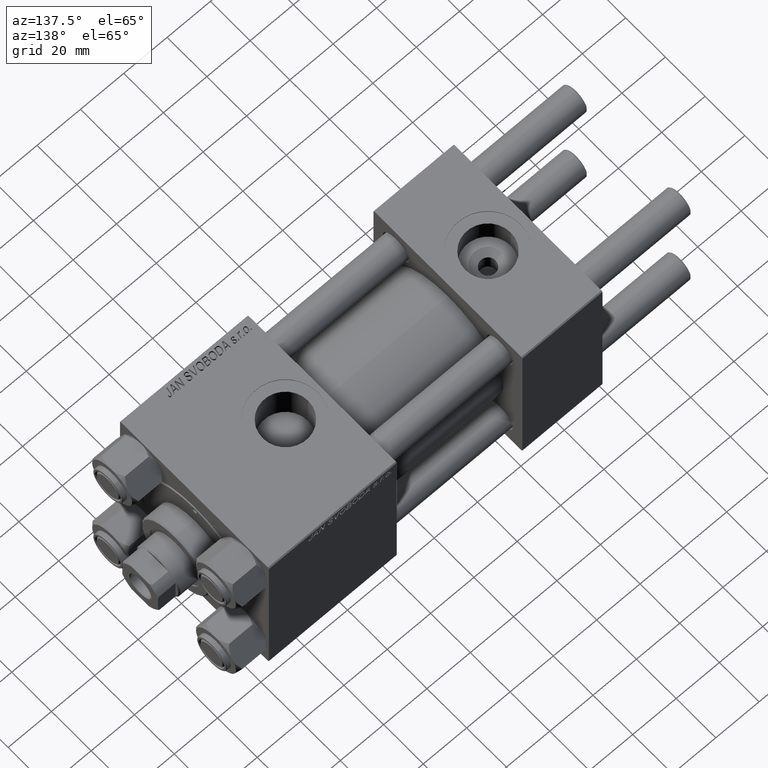
[diagram: clean part render]
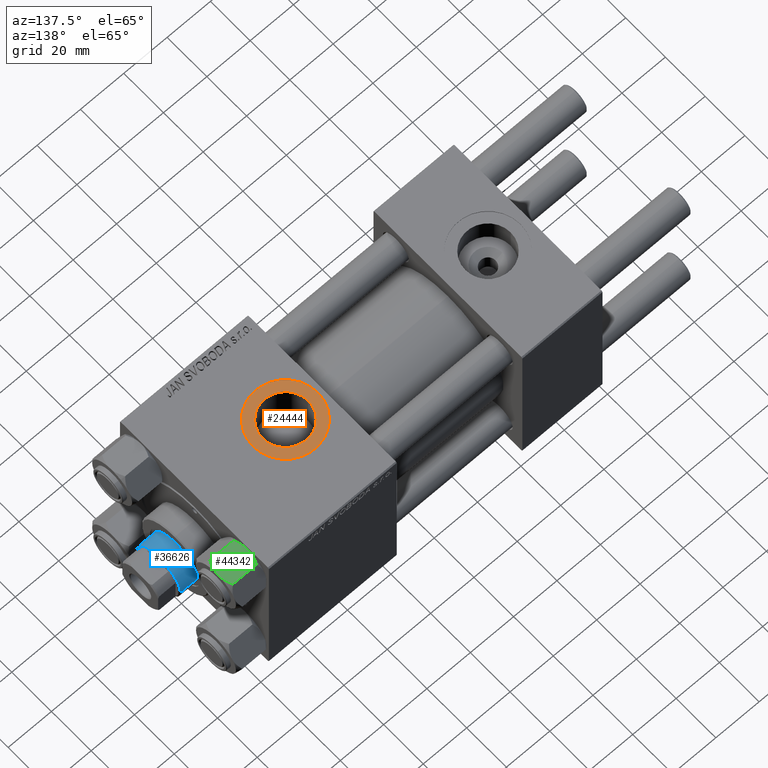
[diagram: same view with three faces highlighted in distinct colors, each labeled with its STEP entity id]
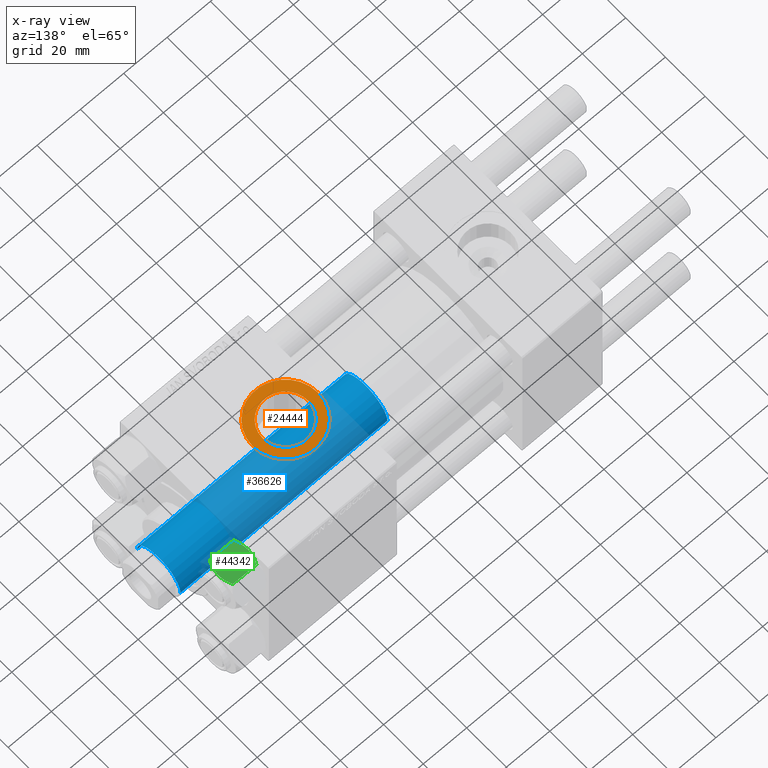
[diagram: x-ray of the same camera — body ghosted, the three highlighted faces saturated]
A machine part, auxiliary view with three faces highlighted in distinct colors.
The next image is the same camera in x-ray (body ghosted, the three faces saturated) — at least one of them is partly hidden behind the body in this view.
Their STEP definitions:

[orange] entity #24444 — the highlighted planar face has unit normal (0, 0, 1).
#455 = EDGE_CURVE ( 'NONE', #8927, #11307, #11856, .T. ) ;
#1784 = DIRECTION ( 'NONE',  ( 0.000000000000000000, 0.000000000000000000, 1.000000000000000000 ) ) ;
#1827 = DIRECTION ( 'NONE',  ( 1.000000000000000000, 0.000000000000000000, 0.000000000000000000 ) ) ;
#4219 = DIRECTION ( 'NONE',  ( 1.000000000000000000, 0.000000000000000000, 0.000000000000000000 ) ) ;
#4229 = CIRCLE ( 'NONE', #17122, 15.00000000000000000 ) ;
#5521 = VERTEX_POINT ( 'NONE', #9001 ) ;
#5763 = ORIENTED_EDGE ( 'NONE', *, *, #20790, .T. ) ;
#5956 = CARTESIAN_POINT ( 'NONE',  ( 112.0000000000000000, -6.938893903907226011E-15, 37.29999999999998295 ) ) ;
#6711 = DIRECTION ( 'NONE',  ( -0.000000000000000000, -0.000000000000000000, -1.000000000000000000 ) ) ;
#8863 = FACE_BOUND ( 'NONE', #25287, .T. ) ;
#8927 = VERTEX_POINT ( 'NONE', #19240 ) ;
#9001 = CARTESIAN_POINT ( 'NONE',  ( 122.4800000000000040, -5.655464058400800522E-15, 37.29999999999998295 ) ) ;
#11307 = VERTEX_POINT ( 'NONE', #49156 ) ;
#11856 = CIRCLE ( 'NONE', #31184, 15.00000000000000000 ) ;
#13445 = DIRECTION ( 'NONE',  ( 0.000000000000000000, 0.000000000000000000, 1.000000000000000000 ) ) ;
#15050 = CARTESIAN_POINT ( 'NONE',  ( 112.0000000000000000, -6.938893903907226011E-15, 37.29999999999998295 ) ) ;
#15299 = ORIENTED_EDGE ( 'NONE', *, *, #42028, .T. ) ;
#16199 = PLANE ( 'NONE',  #26766 ) ;
#17122 = AXIS2_PLACEMENT_3D ( 'NONE', #21749, #13445, #1827 ) ;
#17188 = DIRECTION ( 'NONE',  ( 1.000000000000000000, 0.000000000000000000, -0.000000000000000000 ) ) ;
#19240 = CARTESIAN_POINT ( 'NONE',  ( 96.99999999999998579, -5.101923705186194844E-15, 37.29999999999998295 ) ) ;
#20790 = EDGE_CURVE ( 'NONE', #11307, #8927, #4229, .T. ) ;
#20955 = FACE_OUTER_BOUND ( 'NONE', #29947, .T. ) ;
#21749 = CARTESIAN_POINT ( 'NONE',  ( 112.0000000000000000, -6.938893903907226011E-15, 37.29999999999998295 ) ) ;
#21849 = ORIENTED_EDGE ( 'NONE', *, *, #28971, .T. ) ;
#22076 = CIRCLE ( 'NONE', #32547, 10.48000000000000398 ) ;
#22565 = CARTESIAN_POINT ( 'NONE',  ( 101.5199999999999960, -6.938893903907226011E-15, 37.29999999999998295 ) ) ;
#24444 = ADVANCED_FACE ( 'NONE', ( #8863, #20955 ), #16199, .T. ) ;
#25287 = EDGE_LOOP ( 'NONE', ( #15299, #21849 ) ) ;
#26766 = AXIS2_PLACEMENT_3D ( 'NONE', #36337, #1784, #17188 ) ;
#28911 = DIRECTION ( 'NONE',  ( 0.000000000000000000, 0.000000000000000000, 1.000000000000000000 ) ) ;
#28971 = EDGE_CURVE ( 'NONE', #5521, #35447, #22076, .T. ) ;
#29947 = EDGE_LOOP ( 'NONE', ( #5763, #49791 ) ) ;
#30667 = DIRECTION ( 'NONE',  ( 1.000000000000000000, 0.000000000000000000, 0.000000000000000000 ) ) ;
#31184 = AXIS2_PLACEMENT_3D ( 'NONE', #5956, #28911, #35742 ) ;
#32547 = AXIS2_PLACEMENT_3D ( 'NONE', #35727, #46615, #4219 ) ;
#35447 = VERTEX_POINT ( 'NONE', #22565 ) ;
#35727 = CARTESIAN_POINT ( 'NONE',  ( 112.0000000000000000, -6.938893903907226011E-15, 37.29999999999998295 ) ) ;
#35742 = DIRECTION ( 'NONE',  ( 1.000000000000000000, 0.000000000000000000, 0.000000000000000000 ) ) ;
#36337 = CARTESIAN_POINT ( 'NONE',  ( 112.0000000000000000, -6.938893903907226011E-15, 37.29999999999998295 ) ) ;
#42028 = EDGE_CURVE ( 'NONE', #35447, #5521, #48417, .T. ) ;
#46615 = DIRECTION ( 'NONE',  ( -0.000000000000000000, -0.000000000000000000, -1.000000000000000000 ) ) ;
#48417 = CIRCLE ( 'NONE', #49215, 10.48000000000000398 ) ;
#49156 = CARTESIAN_POINT ( 'NONE',  ( 127.0000000000000000, -6.938893903907226011E-15, 37.29999999999998295 ) ) ;
#49215 = AXIS2_PLACEMENT_3D ( 'NONE', #15050, #6711, #30667 ) ;
#49791 = ORIENTED_EDGE ( 'NONE', *, *, #455, .T. ) ;

[blue] entity #36626 — the highlighted cylindrical surface (edge-blend (fillet) strip) has radius 11 mm, axis along (-1, 0, 0).
#983 = CIRCLE ( 'NONE', #28373, 11.00000000000000000 ) ;
#2627 = EDGE_CURVE ( 'NONE', #18907, #18970, #23388, .T. ) ;
#3096 = FACE_OUTER_BOUND ( 'NONE', #26594, .T. ) ;
#3593 = DIRECTION ( 'NONE',  ( -1.000000000000000000, 0.000000000000000000, 0.000000000000000000 ) ) ;
#4217 = CARTESIAN_POINT ( 'NONE',  ( 11.00000000000000000, 1.347111479062088405E-15, 134.0000000000000000 ) ) ;
#4550 = CARTESIAN_POINT ( 'NONE',  ( 11.00000000000000000, 1.347111479062088405E-15, 38.00000000000000000 ) ) ;
#5716 = VERTEX_POINT ( 'NONE', #17015 ) ;
#6242 = EDGE_CURVE ( 'NONE', #5716, #46938, #18698, .T. ) ;
#7595 = CARTESIAN_POINT ( 'NONE',  ( 11.00000000000000000, 1.347111479062088405E-15, 133.5000000000000000 ) ) ;
#9552 = DIRECTION ( 'NONE',  ( 0.000000000000000000, 0.000000000000000000, -1.000000000000000000 ) ) ;
#11205 = ORIENTED_EDGE ( 'NONE', *, *, #36981, .T. ) ;
#12539 = AXIS2_PLACEMENT_3D ( 'NONE', #44749, #37899, #3593 ) ;
#13280 = ORIENTED_EDGE ( 'NONE', *, *, #6242, .T. ) ;
#13997 = ORIENTED_EDGE ( 'NONE', *, *, #2627, .F. ) ;
#17015 = CARTESIAN_POINT ( 'NONE',  ( -11.00000000000000000, 0.000000000000000000, 133.5000000000000000 ) ) ;
#18206 = DIRECTION ( 'NONE',  ( -0.000000000000000000, -0.000000000000000000, -1.000000000000000000 ) ) ;
#18698 = LINE ( 'NONE', #44955, #28152 ) ;
#18907 = VERTEX_POINT ( 'NONE', #7595 ) ;
#18970 = VERTEX_POINT ( 'NONE', #4550 ) ;
#23388 = LINE ( 'NONE', #4217, #32039 ) ;
#23457 = CARTESIAN_POINT ( 'NONE',  ( 0.000000000000000000, 0.000000000000000000, 133.5000000000000000 ) ) ;
#23873 = CIRCLE ( 'NONE', #44014, 11.00000000000000000 ) ;
#26594 = EDGE_LOOP ( 'NONE', ( #13997, #11205, #13280, #42800 ) ) ;
#27181 = DIRECTION ( 'NONE',  ( -0.000000000000000000, -0.000000000000000000, -1.000000000000000000 ) ) ;
#28152 = VECTOR ( 'NONE', #18206, 1000.000000000000000 ) ;
#28220 = DIRECTION ( 'NONE',  ( 1.000000000000000000, 0.000000000000000000, 0.000000000000000000 ) ) ;
#28373 = AXIS2_PLACEMENT_3D ( 'NONE', #29756, #33296, #48700 ) ;
#29756 = CARTESIAN_POINT ( 'NONE',  ( 0.000000000000000000, 0.000000000000000000, 38.00000000000000000 ) ) ;
#32039 = VECTOR ( 'NONE', #27181, 1000.000000000000000 ) ;
#33296 = DIRECTION ( 'NONE',  ( 0.000000000000000000, 0.000000000000000000, 1.000000000000000000 ) ) ;
#36626 = ADVANCED_FACE ( 'NONE', ( #3096 ), #41438, .T. ) ;
#36981 = EDGE_CURVE ( 'NONE', #18907, #5716, #23873, .T. ) ;
#37899 = DIRECTION ( 'NONE',  ( -0.000000000000000000, -0.000000000000000000, -1.000000000000000000 ) ) ;
#40728 = CARTESIAN_POINT ( 'NONE',  ( -11.00000000000000000, 0.000000000000000000, 38.00000000000000000 ) ) ;
#41438 = CYLINDRICAL_SURFACE ( 'NONE', #12539, 11.00000000000000000 ) ;
#42800 = ORIENTED_EDGE ( 'NONE', *, *, #44790, .T. ) ;
#44014 = AXIS2_PLACEMENT_3D ( 'NONE', #23457, #9552, #28220 ) ;
#44749 = CARTESIAN_POINT ( 'NONE',  ( 0.000000000000000000, 0.000000000000000000, 134.0000000000000000 ) ) ;
#44790 = EDGE_CURVE ( 'NONE', #46938, #18970, #983, .T. ) ;
#44955 = CARTESIAN_POINT ( 'NONE',  ( -11.00000000000000000, 0.000000000000000000, 134.0000000000000000 ) ) ;
#46938 = VERTEX_POINT ( 'NONE', #40728 ) ;
#48700 = DIRECTION ( 'NONE',  ( 1.000000000000000000, 0.000000000000000000, 0.000000000000000000 ) ) ;

[green] entity #44342 — the highlighted planar face has unit normal (0, -0.097, -0.9953).
#803 = CARTESIAN_POINT ( 'NONE',  ( -11.61999999999999922, 4.243578825136429979E-17, -12.44321519197517922 ) ) ;
#1172 = CARTESIAN_POINT ( 'NONE',  ( -8.209704053696571080, 5.906805847843720869, -13.99999999999999112 ) ) ;
#2352 = VERTEX_POINT ( 'NONE', #46150 ) ;
#3577 = CARTESIAN_POINT ( 'NONE',  ( -6.265545725125286403, 9.274186850887382150, -1.101239082899542421 ) ) ;
#4056 = CARTESIAN_POINT ( 'NONE',  ( -11.61999999999999922, 6.036006524886462134E-17, -14.00000000000000000 ) ) ;
#4150 = ORIENTED_EDGE ( 'NONE', *, *, #30431, .T. ) ;
#5227 = LINE ( 'NONE', #32218, #15173 ) ;
#5291 = CARTESIAN_POINT ( 'NONE',  ( -10.69662495661650325, 1.599332489581332339, -0.7114554706434570441 ) ) ;
#6608 = CARTESIAN_POINT ( 'NONE',  ( -7.700834831386347723, 6.788193195293092508, -0.1903979688073504373 ) ) ;
#7099 = ORIENTED_EDGE ( 'NONE', *, *, #32610, .F. ) ;
#7534 = EDGE_CURVE ( 'NONE', #8716, #25544, #5227, .T. ) ;
#7736 = DIRECTION ( 'NONE',  ( 0.8660254037844388186, -0.4999999999999996669, 0.000000000000000000 ) ) ;
#8402 = EDGE_CURVE ( 'NONE', #36227, #8716, #10017, .T. ) ;
#8694 = EDGE_LOOP ( 'NONE', ( #10311, #4150, #7099, #9891, #19478, #29809 ) ) ;
#8716 = VERTEX_POINT ( 'NONE', #33116 ) ;
#8987 = CARTESIAN_POINT ( 'NONE',  ( -8.714999999999996305, 5.031607595987583004, -14.00000000000000000 ) ) ;
#9087 = CARTESIAN_POINT ( 'NONE',  ( -8.714999999999996305, 5.031607595987583004, 0.000000000000000000 ) ) ;
#9891 = ORIENTED_EDGE ( 'NONE', *, *, #20951, .F. ) ;
#10017 = B_SPLINE_CURVE_WITH_KNOTS ( 'NONE', 3,
 ( #8987, #1172, #21081, #13028, #31944, #13521 ),
 .UNSPECIFIED., .F., .F.,
 ( 4, 2, 4 ),
 ( 0.006022845781655582036, 0.009013049135303628084, 0.01200325248895167327 ),
 .UNSPECIFIED. ) ;
#10311 = ORIENTED_EDGE ( 'NONE', *, *, #48616, .F. ) ;
#11273 = VERTEX_POINT ( 'NONE', #803 ) ;
#13028 = CARTESIAN_POINT ( 'NONE',  ( -6.733375043383501790, 8.463882702393842550, -13.28854452935654251 ) ) ;
#13378 = CARTESIAN_POINT ( 'NONE',  ( -11.16498164529022219, 0.7881149087337291359, -1.101766453314959815 ) ) ;
#13521 = CARTESIAN_POINT ( 'NONE',  ( -5.810000000000004050, 10.06321519197517667, -12.44321519197517745 ) ) ;
#14583 = CARTESIAN_POINT ( 'NONE',  ( -8.969430103550386946, 4.590921729663310913, -13.99999999999999289 ) ) ;
#15173 = VECTOR ( 'NONE', #44094, 1000.000000000000000 ) ;
#17440 = CARTESIAN_POINT ( 'NONE',  ( -5.810000000000003162, 10.06321519197517667, -1.556784808024824107 ) ) ;
#18231 = CARTESIAN_POINT ( 'NONE',  ( -8.202333004087902779, 5.919572880271050330, -0.03994118060691660005 ) ) ;
#19478 = ORIENTED_EDGE ( 'NONE', *, *, #7534, .F. ) ;
#19590 = DIRECTION ( 'NONE',  ( 0.4999999999999996669, 0.8660254037844388186, 0.000000000000000000 ) ) ;
#20687 = CARTESIAN_POINT ( 'NONE',  ( -11.61999999999999922, -1.565987599140169687E-18, -1.556784808024820776 ) ) ;
#20951 = EDGE_CURVE ( 'NONE', #25544, #2352, #47133, .T. ) ;
#21081 = CARTESIAN_POINT ( 'NONE',  ( -7.713000053756310592, 6.767122412062951398, -13.84547602999601068 ) ) ;
#23117 = PLANE ( 'NONE',  #28329 ) ;
#24471 = CARTESIAN_POINT ( 'NONE',  ( -9.716999946243696229, 3.296092779912225712, -0.1545239700039918174 ) ) ;
#24680 = CARTESIAN_POINT ( 'NONE',  ( -8.714999999999996305, 5.031607595987583004, -14.00000000000000000 ) ) ;
#25544 = VERTEX_POINT ( 'NONE', #17440 ) ;
#25784 = CARTESIAN_POINT ( 'NONE',  ( -6.731401448974991375, 8.467301068182912616, -0.7141438259524754972 ) ) ;
#26415 = CARTESIAN_POINT ( 'NONE',  ( -8.714999999999996305, 5.031607595987583004, -14.00000000000000000 ) ) ;
#26921 = CARTESIAN_POINT ( 'NONE',  ( -11.16445427487471775, 0.7890283410877965142, -12.89876091710046069 ) ) ;
#28329 = AXIS2_PLACEMENT_3D ( 'NONE', #42047, #7736, #19590 ) ;
#29809 = ORIENTED_EDGE ( 'NONE', *, *, #8402, .F. ) ;
#30208 = VECTOR ( 'NONE', #37620, 1000.000000000000000 ) ;
#30431 = EDGE_CURVE ( 'NONE', #11273, #40038, #38616, .T. ) ;
#30815 = CARTESIAN_POINT ( 'NONE',  ( -8.714999999999996305, 5.031607595987583004, 0.000000000000000000 ) ) ;
#31944 = CARTESIAN_POINT ( 'NONE',  ( -6.265018354709781079, 9.275100283241448196, -12.89823354668503974 ) ) ;
#32218 = CARTESIAN_POINT ( 'NONE',  ( -5.810000000000003162, 10.06321519197517667, -14.00000000000000000 ) ) ;
#32610 = EDGE_CURVE ( 'NONE', #2352, #40038, #33084, .T. ) ;
#33084 = B_SPLINE_CURVE_WITH_KNOTS ( 'NONE', 3,
 ( #9087, #47941, #24471, #5291, #13378, #20687 ),
 .UNSPECIFIED., .F., .F.,
 ( 4, 2, 4 ),
 ( 0.006022845781655588975, 0.009013049135303633289, 0.01200325248895167847 ),
 .UNSPECIFIED. ) ;
#33116 = CARTESIAN_POINT ( 'NONE',  ( -5.810000000000004050, 10.06321519197517667, -12.44321519197517745 ) ) ;
#33738 = CARTESIAN_POINT ( 'NONE',  ( -10.69859855102501278, 1.595914123792263162, -13.28585617404753094 ) ) ;
#35590 = CARTESIAN_POINT ( 'NONE',  ( -8.460569896449618099, 5.472293462311861312, -4.841640326505579160E-15 ) ) ;
#36227 = VERTEX_POINT ( 'NONE', #24680 ) ;
#37620 = DIRECTION ( 'NONE',  ( -0.000000000000000000, -0.000000000000000000, 1.000000000000000000 ) ) ;
#38004 = B_SPLINE_CURVE_WITH_KNOTS ( 'NONE', 3,
 ( #49889, #26921, #33738, #42310, #49138, #49387, #14583, #26415 ),
 .UNSPECIFIED., .F., .F.,
 ( 4, 2, 2, 4 ),
 ( 2.544312114905219494E-07, 0.003011550106433534719, 0.004517197944044558378, 0.006022845781655582036 ),
 .UNSPECIFIED. ) ;
#38616 = LINE ( 'NONE', #4056, #30208 ) ;
#39912 = CARTESIAN_POINT ( 'NONE',  ( -11.61999999999999922, -1.565987599140169687E-18, -1.556784808024820776 ) ) ;
#40038 = VERTEX_POINT ( 'NONE', #39912 ) ;
#41168 = CARTESIAN_POINT ( 'NONE',  ( -7.455303369716808959, 7.213466161761383333, -0.3002673809867471566 ) ) ;
#41674 = CARTESIAN_POINT ( 'NONE',  ( -5.810000000000003162, 10.06321519197517667, -1.556784808024824107 ) ) ;
#42047 = CARTESIAN_POINT ( 'NONE',  ( -11.61999999999999922, 6.036006524886462134E-17, -14.00000000000000000 ) ) ;
#42310 = CARTESIAN_POINT ( 'NONE',  ( -9.974696630283190757, 2.849749030213791556, -13.69973261901325223 ) ) ;
#44094 = DIRECTION ( 'NONE',  ( -0.000000000000000000, -0.000000000000000000, 1.000000000000000000 ) ) ;
#44342 = ADVANCED_FACE ( 'NONE', ( #49375 ), #23117, .F. ) ;
#46150 = CARTESIAN_POINT ( 'NONE',  ( -8.714999999999996305, 5.031607595987583004, 0.000000000000000000 ) ) ;
#47133 = B_SPLINE_CURVE_WITH_KNOTS ( 'NONE', 3,
 ( #41674, #3577, #25784, #41168, #6608, #18231, #35590, #30815 ),
 .UNSPECIFIED., .F., .F.,
 ( 4, 2, 2, 4 ),
 ( 2.544312114906334931E-07, 0.003011550106433540791, 0.004517197944044565316, 0.006022845781655588975 ),
 .UNSPECIFIED. ) ;
#47941 = CARTESIAN_POINT ( 'NONE',  ( -9.220295946303432189, 4.156409344131450467, -4.650210880426107284E-15 ) ) ;
#48616 = EDGE_CURVE ( 'NONE', #11273, #36227, #38004, .T. ) ;
#49138 = CARTESIAN_POINT ( 'NONE',  ( -9.729165168613654657, 3.275021996682081049, -13.80960203119265195 ) ) ;
#49375 = FACE_OUTER_BOUND ( 'NONE', #8694, .T. ) ;
#49387 = CARTESIAN_POINT ( 'NONE',  ( -9.227666995912102266, 4.143642311704122783, -13.96005881939308502 ) ) ;
#49889 = CARTESIAN_POINT ( 'NONE',  ( -11.61999999999999922, 4.243578825136429979E-17, -12.44321519197517922 ) ) ;